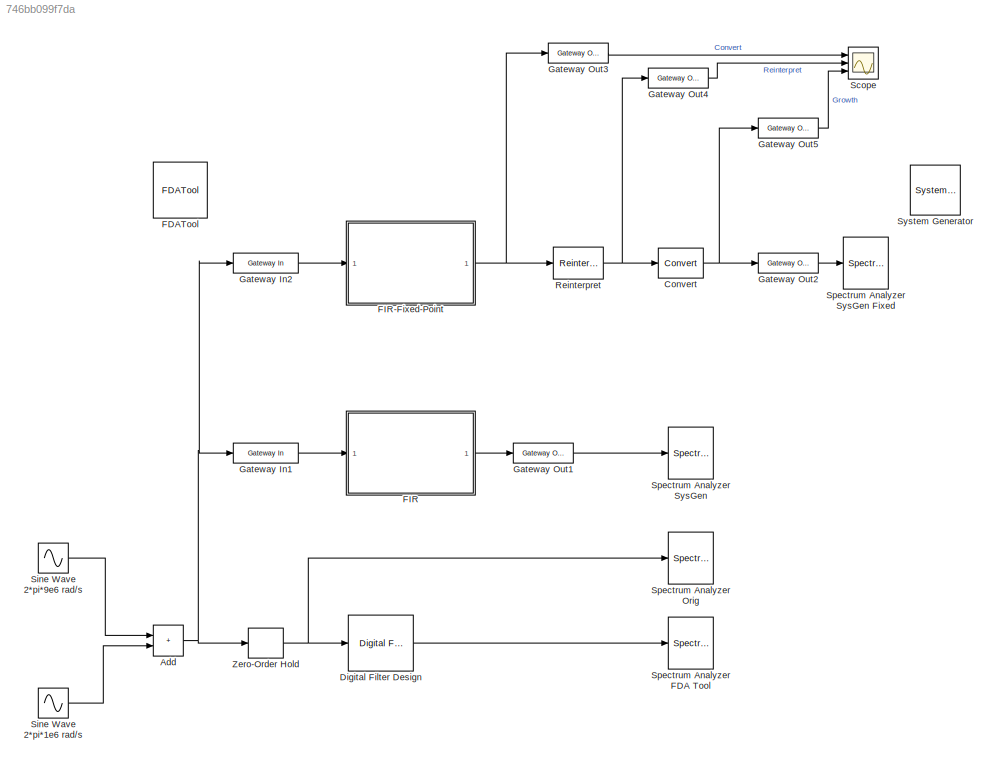
MODEL slx_746bb099f7da
KIND model
CONFIG AbsTol = auto
CONFIG EnableMultiTasking = on
CONFIG FixedStep = auto
CONFIG MaxStep = auto
CONFIG MinStep = auto
CONFIG RelTol = 1e-3
CONFIG SampleTimeConstraint = Unconstrained
CONFIG SolverName = ode45
CONFIG StartTime = 0.0
CONFIG StopTime = 10000/20e6
BLOCK [Reference]  System Generator  REF=xbsIndex_r4/ System Generator
  AttributesFormatString = System\nGenerator
  Ports = []
  SourceBlock = xbsIndex_r4/ System Generator
  SourceType = Xilinx System Generator Block
  Tag = genX
  UserDataPersistent = on
BLOCK [Sum] Add
  IconShape = rectangular
  Ports = [2, 1]
BLOCK [Reference] Convert  REF=hdlBasic/Convert
  Ports = [1, 1]
  SourceBlock = hdlBasic/Convert
  SourceType = Type Converter Block
BLOCK [Reference] Digital Filter Design  REF=dsparch4/Digital
Filter Design
  Ports = [1, 1]
  SourceBlock = dsparch4/Digital\nFilter Design
  SourceProductBaseCode = DS
  SourceType = Digital Filter Design
  UserDataPersistent = on
BLOCK [Reference] FDATool  REF=hdlUtilities/FDATool
  Ports = []
  SourceBlock = hdlUtilities/FDATool
  SourceType = Xilinx FDATool Interface Block
  UserDataPersistent = on
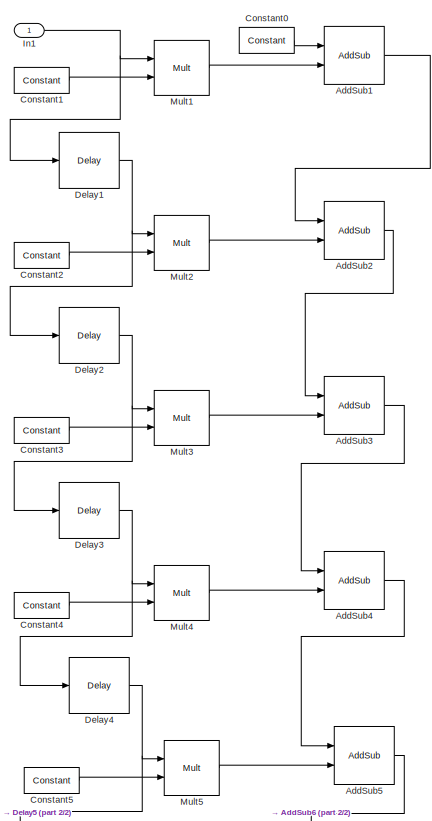
[diagram: FIR - part 1/2, full width, top band]
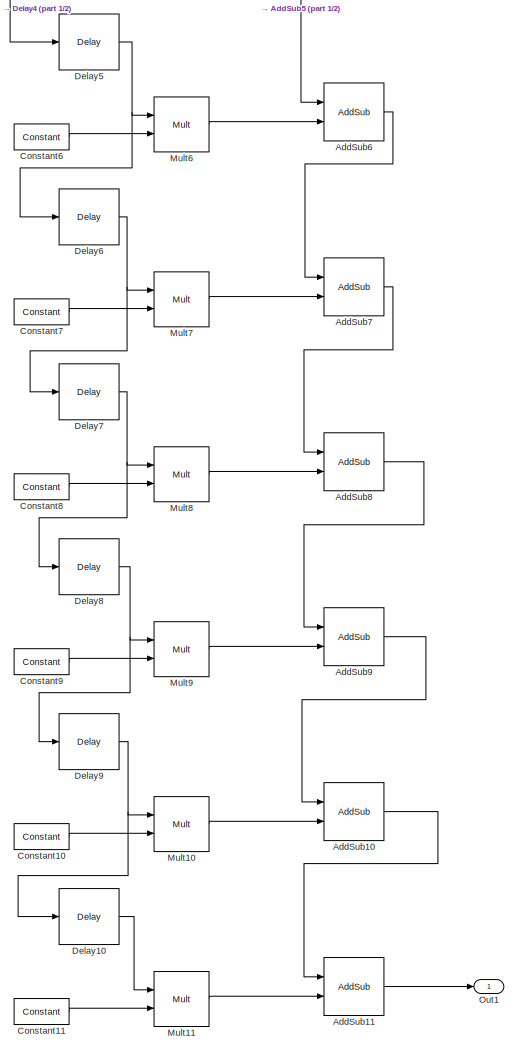
[diagram: FIR - part 2/2, full width, bottom band]
BLOCK [SubSystem] FIR
  Ports = [1, 1]
  RequestExecContextInheritance = off
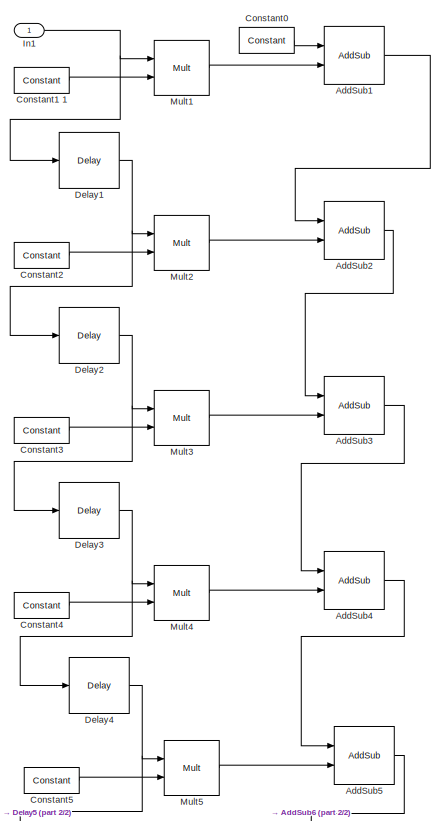
[diagram: FIR-Fixed-Point - part 1/2, full width, top band]
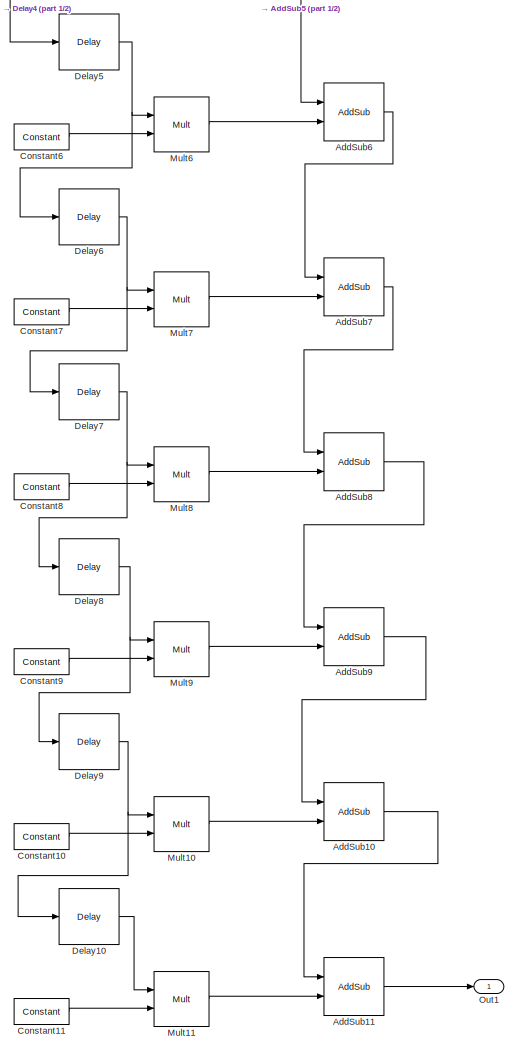
[diagram: FIR-Fixed-Point - part 2/2, full width, bottom band]
BLOCK [SubSystem] FIR-Fixed-Point
  Ports = [1, 1]
  RequestExecContextInheritance = off
BLOCK [Reference] FIR-Fixed-Point/AddSub1  REF=hdlBasic/AddSub
  Ports = [2, 1]
  SourceBlock = hdlBasic/AddSub
  SourceType = Adder/Subtracter Block
BLOCK [Reference] FIR-Fixed-Point/AddSub10  REF=hdlBasic/AddSub
  Ports = [2, 1]
  SourceBlock = hdlBasic/AddSub
  SourceType = Adder/Subtracter Block
BLOCK [Reference] FIR-Fixed-Point/AddSub11  REF=hdlBasic/AddSub
  Ports = [2, 1]
  SourceBlock = hdlBasic/AddSub
  SourceType = Adder/Subtracter Block
BLOCK [Reference] FIR-Fixed-Point/AddSub2  REF=hdlBasic/AddSub
  Ports = [2, 1]
  SourceBlock = hdlBasic/AddSub
  SourceType = Adder/Subtracter Block
BLOCK [Reference] FIR-Fixed-Point/AddSub3  REF=hdlBasic/AddSub
  Ports = [2, 1]
  SourceBlock = hdlBasic/AddSub
  SourceType = Adder/Subtracter Block
BLOCK [Reference] FIR-Fixed-Point/AddSub4  REF=hdlBasic/AddSub
  Ports = [2, 1]
  SourceBlock = hdlBasic/AddSub
  SourceType = Adder/Subtracter Block
BLOCK [Reference] FIR-Fixed-Point/AddSub5  REF=hdlBasic/AddSub
  Ports = [2, 1]
  SourceBlock = hdlBasic/AddSub
  SourceType = Adder/Subtracter Block
BLOCK [Reference] FIR-Fixed-Point/AddSub6  REF=hdlBasic/AddSub
  Ports = [2, 1]
  SourceBlock = hdlBasic/AddSub
  SourceType = Adder/Subtracter Block
BLOCK [Reference] FIR-Fixed-Point/AddSub7  REF=hdlBasic/AddSub
  Ports = [2, 1]
  SourceBlock = hdlBasic/AddSub
  SourceType = Adder/Subtracter Block
BLOCK [Reference] FIR-Fixed-Point/AddSub8  REF=hdlBasic/AddSub
  Ports = [2, 1]
  SourceBlock = hdlBasic/AddSub
  SourceType = Adder/Subtracter Block
BLOCK [Reference] FIR-Fixed-Point/AddSub9  REF=hdlBasic/AddSub
  Ports = [2, 1]
  SourceBlock = hdlBasic/AddSub
  SourceType = Adder/Subtracter Block
BLOCK [Reference] FIR-Fixed-Point/Constant0  REF=hdlBasic/Constant
  Ports = [0, 1]
  SourceBlock = hdlBasic/Constant
  SourceType = Constant Block Block
BLOCK [Reference] FIR-Fixed-Point/Constant1 1  REF=hdlBasic/Constant
  Ports = [0, 1]
  SourceBlock = hdlBasic/Constant
  SourceType = Constant Block Block
BLOCK [Reference] FIR-Fixed-Point/Constant10  REF=hdlBasic/Constant
  Ports = [0, 1]
  SourceBlock = hdlBasic/Constant
  SourceType = Constant Block Block
BLOCK [Reference] FIR-Fixed-Point/Constant11  REF=hdlBasic/Constant
  Ports = [0, 1]
  SourceBlock = hdlBasic/Constant
  SourceType = Constant Block Block
BLOCK [Reference] FIR-Fixed-Point/Constant2   REF=hdlBasic/Constant
  Ports = [0, 1]
  SourceBlock = hdlBasic/Constant
  SourceType = Constant Block Block
BLOCK [Reference] FIR-Fixed-Point/Constant3  REF=hdlBasic/Constant
  Ports = [0, 1]
  SourceBlock = hdlBasic/Constant
  SourceType = Constant Block Block
BLOCK [Reference] FIR-Fixed-Point/Constant4  REF=hdlBasic/Constant
  Ports = [0, 1]
  SourceBlock = hdlBasic/Constant
  SourceType = Constant Block Block
BLOCK [Reference] FIR-Fixed-Point/Constant5  REF=hdlBasic/Constant
  Ports = [0, 1]
  SourceBlock = hdlBasic/Constant
  SourceType = Constant Block Block
BLOCK [Reference] FIR-Fixed-Point/Constant6  REF=hdlBasic/Constant
  Ports = [0, 1]
  SourceBlock = hdlBasic/Constant
  SourceType = Constant Block Block
BLOCK [Reference] FIR-Fixed-Point/Constant7  REF=hdlBasic/Constant
  Ports = [0, 1]
  SourceBlock = hdlBasic/Constant
  SourceType = Constant Block Block
BLOCK [Reference] FIR-Fixed-Point/Constant8  REF=hdlBasic/Constant
  Ports = [0, 1]
  SourceBlock = hdlBasic/Constant
  SourceType = Constant Block Block
BLOCK [Reference] FIR-Fixed-Point/Constant9  REF=hdlBasic/Constant
  Ports = [0, 1]
  SourceBlock = hdlBasic/Constant
  SourceType = Constant Block Block
BLOCK [Reference] FIR-Fixed-Point/Delay1  REF=hdlBasic/Delay
  Ports = [1, 1]
  SourceBlock = hdlBasic/Delay
  SourceType = Delay Block
BLOCK [Reference] FIR-Fixed-Point/Delay10  REF=hdlBasic/Delay
  Ports = [1, 1]
  SourceBlock = hdlBasic/Delay
  SourceType = Delay Block
BLOCK [Reference] FIR-Fixed-Point/Delay2  REF=hdlBasic/Delay
  Ports = [1, 1]
  SourceBlock = hdlBasic/Delay
  SourceType = Delay Block
BLOCK [Reference] FIR-Fixed-Point/Delay3  REF=hdlBasic/Delay
  Ports = [1, 1]
  SourceBlock = hdlBasic/Delay
  SourceType = Delay Block
BLOCK [Reference] FIR-Fixed-Point/Delay4  REF=hdlBasic/Delay
  Ports = [1, 1]
  SourceBlock = hdlBasic/Delay
  SourceType = Delay Block
BLOCK [Reference] FIR-Fixed-Point/Delay5  REF=hdlBasic/Delay
  Ports = [1, 1]
  SourceBlock = hdlBasic/Delay
  SourceType = Delay Block
BLOCK [Reference] FIR-Fixed-Point/Delay6  REF=hdlBasic/Delay
  Ports = [1, 1]
  SourceBlock = hdlBasic/Delay
  SourceType = Delay Block
BLOCK [Reference] FIR-Fixed-Point/Delay7  REF=hdlBasic/Delay
  Ports = [1, 1]
  SourceBlock = hdlBasic/Delay
  SourceType = Delay Block
BLOCK [Reference] FIR-Fixed-Point/Delay8  REF=hdlBasic/Delay
  Ports = [1, 1]
  SourceBlock = hdlBasic/Delay
  SourceType = Delay Block
BLOCK [Reference] FIR-Fixed-Point/Delay9  REF=hdlBasic/Delay
  Ports = [1, 1]
  SourceBlock = hdlBasic/Delay
  SourceType = Delay Block
BLOCK [Inport] FIR-Fixed-Point/In1
BLOCK [Reference] FIR-Fixed-Point/Mult1  REF=hdlBasic/Mult
  Ports = [2, 1]
  SourceBlock = hdlBasic/Mult
  SourceType = Multiplier Block
BLOCK [Reference] FIR-Fixed-Point/Mult10  REF=hdlBasic/Mult
  Ports = [2, 1]
  SourceBlock = hdlBasic/Mult
  SourceType = Multiplier Block
BLOCK [Reference] FIR-Fixed-Point/Mult11  REF=hdlBasic/Mult
  Ports = [2, 1]
  SourceBlock = hdlBasic/Mult
  SourceType = Multiplier Block
BLOCK [Reference] FIR-Fixed-Point/Mult2  REF=hdlBasic/Mult
  Ports = [2, 1]
  SourceBlock = hdlBasic/Mult
  SourceType = Multiplier Block
BLOCK [Reference] FIR-Fixed-Point/Mult3  REF=hdlBasic/Mult
  Ports = [2, 1]
  SourceBlock = hdlBasic/Mult
  SourceType = Multiplier Block
BLOCK [Reference] FIR-Fixed-Point/Mult4  REF=hdlBasic/Mult
  Ports = [2, 1]
  SourceBlock = hdlBasic/Mult
  SourceType = Multiplier Block
BLOCK [Reference] FIR-Fixed-Point/Mult5  REF=hdlBasic/Mult
  Ports = [2, 1]
  SourceBlock = hdlBasic/Mult
  SourceType = Multiplier Block
BLOCK [Reference] FIR-Fixed-Point/Mult6  REF=hdlBasic/Mult
  Ports = [2, 1]
  SourceBlock = hdlBasic/Mult
  SourceType = Multiplier Block
BLOCK [Reference] FIR-Fixed-Point/Mult7  REF=hdlBasic/Mult
  Ports = [2, 1]
  SourceBlock = hdlBasic/Mult
  SourceType = Multiplier Block
BLOCK [Reference] FIR-Fixed-Point/Mult8  REF=hdlBasic/Mult
  Ports = [2, 1]
  SourceBlock = hdlBasic/Mult
  SourceType = Multiplier Block
BLOCK [Reference] FIR-Fixed-Point/Mult9  REF=hdlBasic/Mult
  Ports = [2, 1]
  SourceBlock = hdlBasic/Mult
  SourceType = Multiplier Block
BLOCK [Outport] FIR-Fixed-Point/Out1
  VectorParamsAs1DForOutWhenUnconnected = off
BLOCK [Reference] FIR/AddSub1  REF=hdlBasic/AddSub
  Ports = [2, 1]
  SourceBlock = hdlBasic/AddSub
  SourceType = Adder/Subtracter Block
BLOCK [Reference] FIR/AddSub10  REF=hdlBasic/AddSub
  Ports = [2, 1]
  SourceBlock = hdlBasic/AddSub
  SourceType = Adder/Subtracter Block
BLOCK [Reference] FIR/AddSub11  REF=hdlBasic/AddSub
  Ports = [2, 1]
  SourceBlock = hdlBasic/AddSub
  SourceType = Adder/Subtracter Block
BLOCK [Reference] FIR/AddSub2  REF=hdlBasic/AddSub
  Ports = [2, 1]
  SourceBlock = hdlBasic/AddSub
  SourceType = Adder/Subtracter Block
BLOCK [Reference] FIR/AddSub3  REF=hdlBasic/AddSub
  Ports = [2, 1]
  SourceBlock = hdlBasic/AddSub
  SourceType = Adder/Subtracter Block
BLOCK [Reference] FIR/AddSub4  REF=hdlBasic/AddSub
  Ports = [2, 1]
  SourceBlock = hdlBasic/AddSub
  SourceType = Adder/Subtracter Block
BLOCK [Reference] FIR/AddSub5  REF=hdlBasic/AddSub
  Ports = [2, 1]
  SourceBlock = hdlBasic/AddSub
  SourceType = Adder/Subtracter Block
BLOCK [Reference] FIR/AddSub6  REF=hdlBasic/AddSub
  Ports = [2, 1]
  SourceBlock = hdlBasic/AddSub
  SourceType = Adder/Subtracter Block
BLOCK [Reference] FIR/AddSub7  REF=hdlBasic/AddSub
  Ports = [2, 1]
  SourceBlock = hdlBasic/AddSub
  SourceType = Adder/Subtracter Block
BLOCK [Reference] FIR/AddSub8  REF=hdlBasic/AddSub
  Ports = [2, 1]
  SourceBlock = hdlBasic/AddSub
  SourceType = Adder/Subtracter Block
BLOCK [Reference] FIR/AddSub9  REF=hdlBasic/AddSub
  Ports = [2, 1]
  SourceBlock = hdlBasic/AddSub
  SourceType = Adder/Subtracter Block
BLOCK [Reference] FIR/Constant0  REF=hdlBasic/Constant
  Ports = [0, 1]
  SourceBlock = hdlBasic/Constant
  SourceType = Constant Block Block
BLOCK [Reference] FIR/Constant1   REF=hdlBasic/Constant
  Ports = [0, 1]
  SourceBlock = hdlBasic/Constant
  SourceType = Constant Block Block
BLOCK [Reference] FIR/Constant10  REF=hdlBasic/Constant
  Ports = [0, 1]
  SourceBlock = hdlBasic/Constant
  SourceType = Constant Block Block
BLOCK [Reference] FIR/Constant11  REF=hdlBasic/Constant
  Ports = [0, 1]
  SourceBlock = hdlBasic/Constant
  SourceType = Constant Block Block
BLOCK [Reference] FIR/Constant2   REF=hdlBasic/Constant
  Ports = [0, 1]
  SourceBlock = hdlBasic/Constant
  SourceType = Constant Block Block
BLOCK [Reference] FIR/Constant3  REF=hdlBasic/Constant
  Ports = [0, 1]
  SourceBlock = hdlBasic/Constant
  SourceType = Constant Block Block
BLOCK [Reference] FIR/Constant4  REF=hdlBasic/Constant
  Ports = [0, 1]
  SourceBlock = hdlBasic/Constant
  SourceType = Constant Block Block
BLOCK [Reference] FIR/Constant5  REF=hdlBasic/Constant
  Ports = [0, 1]
  SourceBlock = hdlBasic/Constant
  SourceType = Constant Block Block
BLOCK [Reference] FIR/Constant6  REF=hdlBasic/Constant
  Ports = [0, 1]
  SourceBlock = hdlBasic/Constant
  SourceType = Constant Block Block
BLOCK [Reference] FIR/Constant7  REF=hdlBasic/Constant
  Ports = [0, 1]
  SourceBlock = hdlBasic/Constant
  SourceType = Constant Block Block
BLOCK [Reference] FIR/Constant8  REF=hdlBasic/Constant
  Ports = [0, 1]
  SourceBlock = hdlBasic/Constant
  SourceType = Constant Block Block
BLOCK [Reference] FIR/Constant9  REF=hdlBasic/Constant
  Ports = [0, 1]
  SourceBlock = hdlBasic/Constant
  SourceType = Constant Block Block
BLOCK [Reference] FIR/Delay1  REF=hdlBasic/Delay
  Ports = [1, 1]
  SourceBlock = hdlBasic/Delay
  SourceType = Delay Block
BLOCK [Reference] FIR/Delay10  REF=hdlBasic/Delay
  Ports = [1, 1]
  SourceBlock = hdlBasic/Delay
  SourceType = Delay Block
BLOCK [Reference] FIR/Delay2  REF=hdlBasic/Delay
  Ports = [1, 1]
  SourceBlock = hdlBasic/Delay
  SourceType = Delay Block
BLOCK [Reference] FIR/Delay3  REF=hdlBasic/Delay
  Ports = [1, 1]
  SourceBlock = hdlBasic/Delay
  SourceType = Delay Block
BLOCK [Reference] FIR/Delay4  REF=hdlBasic/Delay
  Ports = [1, 1]
  SourceBlock = hdlBasic/Delay
  SourceType = Delay Block
BLOCK [Reference] FIR/Delay5  REF=hdlBasic/Delay
  Ports = [1, 1]
  SourceBlock = hdlBasic/Delay
  SourceType = Delay Block
BLOCK [Reference] FIR/Delay6  REF=hdlBasic/Delay
  Ports = [1, 1]
  SourceBlock = hdlBasic/Delay
  SourceType = Delay Block
BLOCK [Reference] FIR/Delay7  REF=hdlBasic/Delay
  Ports = [1, 1]
  SourceBlock = hdlBasic/Delay
  SourceType = Delay Block
BLOCK [Reference] FIR/Delay8  REF=hdlBasic/Delay
  Ports = [1, 1]
  SourceBlock = hdlBasic/Delay
  SourceType = Delay Block
BLOCK [Reference] FIR/Delay9  REF=hdlBasic/Delay
  Ports = [1, 1]
  SourceBlock = hdlBasic/Delay
  SourceType = Delay Block
BLOCK [Inport] FIR/In1
BLOCK [Reference] FIR/Mult1  REF=hdlBasic/Mult
  Ports = [2, 1]
  SourceBlock = hdlBasic/Mult
  SourceType = Multiplier Block
BLOCK [Reference] FIR/Mult10  REF=hdlBasic/Mult
  Ports = [2, 1]
  SourceBlock = hdlBasic/Mult
  SourceType = Multiplier Block
BLOCK [Reference] FIR/Mult11  REF=hdlBasic/Mult
  Ports = [2, 1]
  SourceBlock = hdlBasic/Mult
  SourceType = Multiplier Block
BLOCK [Reference] FIR/Mult2  REF=hdlBasic/Mult
  Ports = [2, 1]
  SourceBlock = hdlBasic/Mult
  SourceType = Multiplier Block
BLOCK [Reference] FIR/Mult3  REF=hdlBasic/Mult
  Ports = [2, 1]
  SourceBlock = hdlBasic/Mult
  SourceType = Multiplier Block
BLOCK [Reference] FIR/Mult4  REF=hdlBasic/Mult
  Ports = [2, 1]
  SourceBlock = hdlBasic/Mult
  SourceType = Multiplier Block
BLOCK [Reference] FIR/Mult5  REF=hdlBasic/Mult
  Ports = [2, 1]
  SourceBlock = hdlBasic/Mult
  SourceType = Multiplier Block
BLOCK [Reference] FIR/Mult6  REF=hdlBasic/Mult
  Ports = [2, 1]
  SourceBlock = hdlBasic/Mult
  SourceType = Multiplier Block
BLOCK [Reference] FIR/Mult7  REF=hdlBasic/Mult
  Ports = [2, 1]
  SourceBlock = hdlBasic/Mult
  SourceType = Multiplier Block
BLOCK [Reference] FIR/Mult8  REF=hdlBasic/Mult
  Ports = [2, 1]
  SourceBlock = hdlBasic/Mult
  SourceType = Multiplier Block
BLOCK [Reference] FIR/Mult9  REF=hdlBasic/Mult
  Ports = [2, 1]
  SourceBlock = hdlBasic/Mult
  SourceType = Multiplier Block
BLOCK [Outport] FIR/Out1
  VectorParamsAs1DForOutWhenUnconnected = off
BLOCK [Reference] Gateway In1  REF=hdlBasic/Gateway In
  Ports = [1, 1]
  SourceBlock = hdlBasic/Gateway In
  SourceType = Gateway In Block
BLOCK [Reference] Gateway In2  REF=hdlBasic/Gateway In
  Ports = [1, 1]
  SourceBlock = hdlBasic/Gateway In
  SourceType = Gateway In Block
BLOCK [Reference] Gateway Out1  REF=hdlBasic/Gateway Out
  Ports = [1, 1]
  SourceBlock = hdlBasic/Gateway Out
  SourceType = Gateway Out Block
BLOCK [Reference] Gateway Out2  REF=hdlBasic/Gateway Out
  Ports = [1, 1]
  SourceBlock = hdlBasic/Gateway Out
  SourceType = Gateway Out Block
BLOCK [Reference] Gateway Out3  REF=hdlBasic/Gateway Out
  Ports = [1, 1]
  SourceBlock = hdlBasic/Gateway Out
  SourceType = Gateway Out Block
BLOCK [Reference] Gateway Out4  REF=hdlBasic/Gateway Out
  Ports = [1, 1]
  SourceBlock = hdlBasic/Gateway Out
  SourceType = Gateway Out Block
BLOCK [Reference] Gateway Out5  REF=hdlBasic/Gateway Out
  Ports = [1, 1]
  SourceBlock = hdlBasic/Gateway Out
  SourceType = Gateway Out Block
BLOCK [Reference] Reinterpret  REF=hdlBasic/Reinterpret
  Ports = [1, 1]
  SourceBlock = hdlBasic/Reinterpret
  SourceType = Type Reinterpreter Block
BLOCK [Scope] Scope
  Floating = off
  NumInputPorts = 3
  Ports = [3]
  ScopeSpecificationString = Simulink.scopes.TimeScopeBlockCfg('CurrentConfiguration', extmgr.ConfigurationSet(extmgr.Configuration('Core','General UI',true),extmgr.Configuration('Core','Source UI',true),extmgr.Configuration('Sources','WiredSimulink',true),extmgr.Configuration('Visuals','Time Domain',true,'SerializedDisplays',{struct('MinYLimReal','-1.00197','MaxYLimReal','1.03692','YLabelReal','','MinYLimMag','0.00000','MaxY...<+2729ch>
BLOCK [Sin] Sine Wave 2*pi*1e6 rad//s
  Frequency = 2*pi*1e6
  Ports = [0, 1]
  SampleTime = 0
BLOCK [Sin] Sine Wave 2*pi*9e6 rad//s
  Frequency = 2*pi*9e6
  Ports = [0, 1]
  SampleTime = 0
BLOCK [SpectrumAnalyzer] Spectrum Analyzer FDA Tool
  Ports = [1]
  ScopeSpecificationString = spbscopes.SpectrumAnalyzerBlockCfg('CurrentConfiguration', extmgr.ConfigurationSet(extmgr.Configuration('Core','General UI',true),extmgr.Configuration('Core','Source UI',true),extmgr.Configuration('Sources','WiredSimulink',true),extmgr.Configuration('Visuals','Spectrum',true,'AxesProperties',struct('Color',{[0 0 0],[0 0 0]},'XColor',{[0.686274509803922 0.686274509803922 0.686274509803922],[0.68627...<+2013ch>  <repeated x3 — deduplicated; at blocks: Spectrum Analyzer FDA Tool, Spectrum Analyzer Orig, Spectrum Analyzer SysGen Fixed>
BLOCK [SpectrumAnalyzer] Spectrum Analyzer Orig
  Ports = [1]
BLOCK [SpectrumAnalyzer] Spectrum Analyzer SysGen
  Ports = [1]
  ScopeSpecificationString = spbscopes.SpectrumAnalyzerBlockCfg('CurrentConfiguration', extmgr.ConfigurationSet(extmgr.Configuration('Core','General UI',true),extmgr.Configuration('Core','Source UI',true),extmgr.Configuration('Sources','WiredSimulink',true),extmgr.Configuration('Visuals','Spectrum',true,'AxesProperties',struct('Color',{[0 0 0],[0 0 0]},'XColor',{[0.686274509803922 0.686274509803922 0.686274509803922],[0.68627...<+2012ch>
BLOCK [SpectrumAnalyzer] Spectrum Analyzer SysGen Fixed
  Ports = [1]
BLOCK [ZeroOrderHold] Zero-Order Hold
  SampleTime = 1/20e6
NET Add:1 -> Gateway In1:1, Gateway In2:1, Zero-Order Hold:1
NET Convert:1 -> Gateway Out2:1, Gateway Out5:1
LINE Digital Filter Design:1 -> Spectrum Analyzer FDA Tool:1
LINE FIR-Fixed-Point/AddSub10:1 -> FIR-Fixed-Point/AddSub11:1
LINE FIR-Fixed-Point/AddSub11:1 -> FIR-Fixed-Point/Out1:1
LINE FIR-Fixed-Point/AddSub1:1 -> FIR-Fixed-Point/AddSub2:1
LINE FIR-Fixed-Point/AddSub2:1 -> FIR-Fixed-Point/AddSub3:1
LINE FIR-Fixed-Point/AddSub3:1 -> FIR-Fixed-Point/AddSub4:1
LINE FIR-Fixed-Point/AddSub4:1 -> FIR-Fixed-Point/AddSub5:1
LINE FIR-Fixed-Point/AddSub5:1 -> FIR-Fixed-Point/AddSub6:1
LINE FIR-Fixed-Point/AddSub6:1 -> FIR-Fixed-Point/AddSub7:1
LINE FIR-Fixed-Point/AddSub7:1 -> FIR-Fixed-Point/AddSub8:1
LINE FIR-Fixed-Point/AddSub8:1 -> FIR-Fixed-Point/AddSub9:1
LINE FIR-Fixed-Point/AddSub9:1 -> FIR-Fixed-Point/AddSub10:1
LINE FIR-Fixed-Point/Constant0:1 -> FIR-Fixed-Point/AddSub1:1
LINE FIR-Fixed-Point/Constant1 1:1 -> FIR-Fixed-Point/Mult1:2
LINE FIR-Fixed-Point/Constant10:1 -> FIR-Fixed-Point/Mult10:2
LINE FIR-Fixed-Point/Constant11:1 -> FIR-Fixed-Point/Mult11:2
LINE FIR-Fixed-Point/Constant2 :1 -> FIR-Fixed-Point/Mult2:2
LINE FIR-Fixed-Point/Constant3:1 -> FIR-Fixed-Point/Mult3:2
LINE FIR-Fixed-Point/Constant4:1 -> FIR-Fixed-Point/Mult4:2
LINE FIR-Fixed-Point/Constant5:1 -> FIR-Fixed-Point/Mult5:2
LINE FIR-Fixed-Point/Constant6:1 -> FIR-Fixed-Point/Mult6:2
LINE FIR-Fixed-Point/Constant7:1 -> FIR-Fixed-Point/Mult7:2
LINE FIR-Fixed-Point/Constant8:1 -> FIR-Fixed-Point/Mult8:2
LINE FIR-Fixed-Point/Constant9:1 -> FIR-Fixed-Point/Mult9:2
LINE FIR-Fixed-Point/Delay10:1 -> FIR-Fixed-Point/Mult11:1
NET FIR-Fixed-Point/Delay1:1 -> FIR-Fixed-Point/Delay2:1, FIR-Fixed-Point/Mult2:1
NET FIR-Fixed-Point/Delay2:1 -> FIR-Fixed-Point/Delay3:1, FIR-Fixed-Point/Mult3:1
NET FIR-Fixed-Point/Delay3:1 -> FIR-Fixed-Point/Delay4:1, FIR-Fixed-Point/Mult4:1
NET FIR-Fixed-Point/Delay4:1 -> FIR-Fixed-Point/Delay5:1, FIR-Fixed-Point/Mult5:1
NET FIR-Fixed-Point/Delay5:1 -> FIR-Fixed-Point/Delay6:1, FIR-Fixed-Point/Mult6:1
NET FIR-Fixed-Point/Delay6:1 -> FIR-Fixed-Point/Delay7:1, FIR-Fixed-Point/Mult7:1
NET FIR-Fixed-Point/Delay7:1 -> FIR-Fixed-Point/Delay8:1, FIR-Fixed-Point/Mult8:1
NET FIR-Fixed-Point/Delay8:1 -> FIR-Fixed-Point/Delay9:1, FIR-Fixed-Point/Mult9:1
NET FIR-Fixed-Point/Delay9:1 -> FIR-Fixed-Point/Delay10:1, FIR-Fixed-Point/Mult10:1
NET FIR-Fixed-Point/In1:1 -> FIR-Fixed-Point/Delay1:1, FIR-Fixed-Point/Mult1:1
LINE FIR-Fixed-Point/Mult10:1 -> FIR-Fixed-Point/AddSub10:2
LINE FIR-Fixed-Point/Mult11:1 -> FIR-Fixed-Point/AddSub11:2
LINE FIR-Fixed-Point/Mult1:1 -> FIR-Fixed-Point/AddSub1:2
LINE FIR-Fixed-Point/Mult2:1 -> FIR-Fixed-Point/AddSub2:2
LINE FIR-Fixed-Point/Mult3:1 -> FIR-Fixed-Point/AddSub3:2
LINE FIR-Fixed-Point/Mult4:1 -> FIR-Fixed-Point/AddSub4:2
LINE FIR-Fixed-Point/Mult5:1 -> FIR-Fixed-Point/AddSub5:2
LINE FIR-Fixed-Point/Mult6:1 -> FIR-Fixed-Point/AddSub6:2
LINE FIR-Fixed-Point/Mult7:1 -> FIR-Fixed-Point/AddSub7:2
LINE FIR-Fixed-Point/Mult8:1 -> FIR-Fixed-Point/AddSub8:2
LINE FIR-Fixed-Point/Mult9:1 -> FIR-Fixed-Point/AddSub9:2
NET FIR-Fixed-Point:1 -> Gateway Out3:1, Reinterpret:1
LINE FIR/AddSub10:1 -> FIR/AddSub11:1
LINE FIR/AddSub11:1 -> FIR/Out1:1
LINE FIR/AddSub1:1 -> FIR/AddSub2:1
LINE FIR/AddSub2:1 -> FIR/AddSub3:1
LINE FIR/AddSub3:1 -> FIR/AddSub4:1
LINE FIR/AddSub4:1 -> FIR/AddSub5:1
LINE FIR/AddSub5:1 -> FIR/AddSub6:1
LINE FIR/AddSub6:1 -> FIR/AddSub7:1
LINE FIR/AddSub7:1 -> FIR/AddSub8:1
LINE FIR/AddSub8:1 -> FIR/AddSub9:1
LINE FIR/AddSub9:1 -> FIR/AddSub10:1
LINE FIR/Constant0:1 -> FIR/AddSub1:1
LINE FIR/Constant1 :1 -> FIR/Mult1:2
LINE FIR/Constant10:1 -> FIR/Mult10:2
LINE FIR/Constant11:1 -> FIR/Mult11:2
LINE FIR/Constant2 :1 -> FIR/Mult2:2
LINE FIR/Constant3:1 -> FIR/Mult3:2
LINE FIR/Constant4:1 -> FIR/Mult4:2
LINE FIR/Constant5:1 -> FIR/Mult5:2
LINE FIR/Constant6:1 -> FIR/Mult6:2
LINE FIR/Constant7:1 -> FIR/Mult7:2
LINE FIR/Constant8:1 -> FIR/Mult8:2
LINE FIR/Constant9:1 -> FIR/Mult9:2
LINE FIR/Delay10:1 -> FIR/Mult11:1
NET FIR/Delay1:1 -> FIR/Delay2:1, FIR/Mult2:1
NET FIR/Delay2:1 -> FIR/Delay3:1, FIR/Mult3:1
NET FIR/Delay3:1 -> FIR/Delay4:1, FIR/Mult4:1
NET FIR/Delay4:1 -> FIR/Delay5:1, FIR/Mult5:1
NET FIR/Delay5:1 -> FIR/Delay6:1, FIR/Mult6:1
NET FIR/Delay6:1 -> FIR/Delay7:1, FIR/Mult7:1
NET FIR/Delay7:1 -> FIR/Delay8:1, FIR/Mult8:1
NET FIR/Delay8:1 -> FIR/Delay9:1, FIR/Mult9:1
NET FIR/Delay9:1 -> FIR/Delay10:1, FIR/Mult10:1
NET FIR/In1:1 -> FIR/Delay1:1, FIR/Mult1:1
LINE FIR/Mult10:1 -> FIR/AddSub10:2
LINE FIR/Mult11:1 -> FIR/AddSub11:2
LINE FIR/Mult1:1 -> FIR/AddSub1:2
LINE FIR/Mult2:1 -> FIR/AddSub2:2
LINE FIR/Mult3:1 -> FIR/AddSub3:2
LINE FIR/Mult4:1 -> FIR/AddSub4:2
LINE FIR/Mult5:1 -> FIR/AddSub5:2
LINE FIR/Mult6:1 -> FIR/AddSub6:2
LINE FIR/Mult7:1 -> FIR/AddSub7:2
LINE FIR/Mult8:1 -> FIR/AddSub8:2
LINE FIR/Mult9:1 -> FIR/AddSub9:2
LINE FIR:1 -> Gateway Out1:1
LINE Gateway In1:1 -> FIR:1
LINE Gateway In2:1 -> FIR-Fixed-Point:1
LINE Gateway Out1:1 -> Spectrum Analyzer SysGen:1
LINE Gateway Out2:1 -> Spectrum Analyzer SysGen Fixed:1
LINE Gateway Out3:1 -> Scope:1
LINE Gateway Out4:1 -> Scope:2
LINE Gateway Out5:1 -> Scope:3
NET Reinterpret:1 -> Convert:1, Gateway Out4:1
LINE Sine Wave 2*pi*1e6 rad//s:1 -> Add:2
LINE Sine Wave 2*pi*9e6 rad//s:1 -> Add:1
NET Zero-Order Hold:1 -> Digital Filter Design:1, Spectrum Analyzer Orig:1
note: NET lines group one-source signal fan-out (src -> all destinations, sorted); 1:1 wires keep LINE
